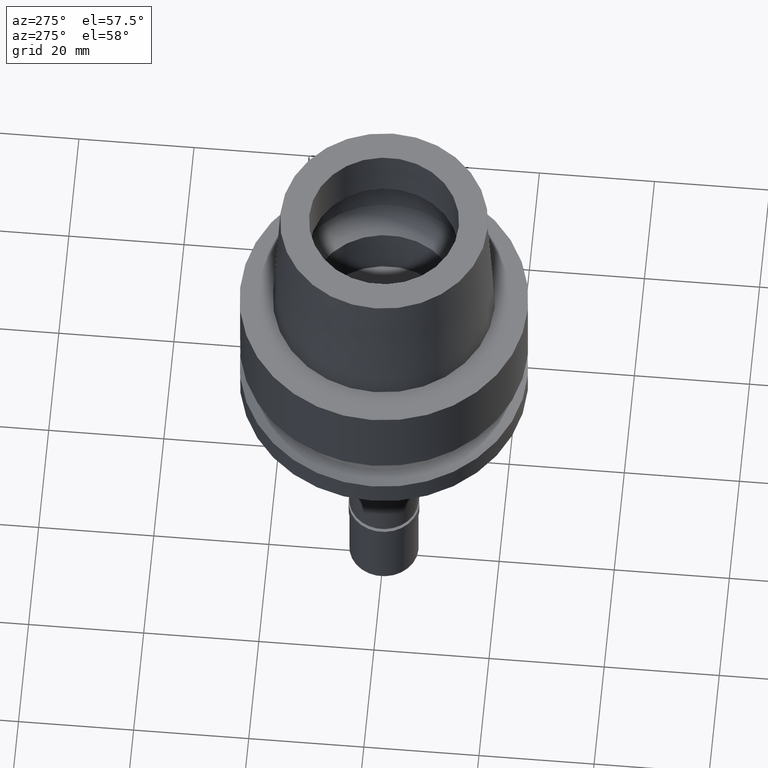
[diagram: clean part render]
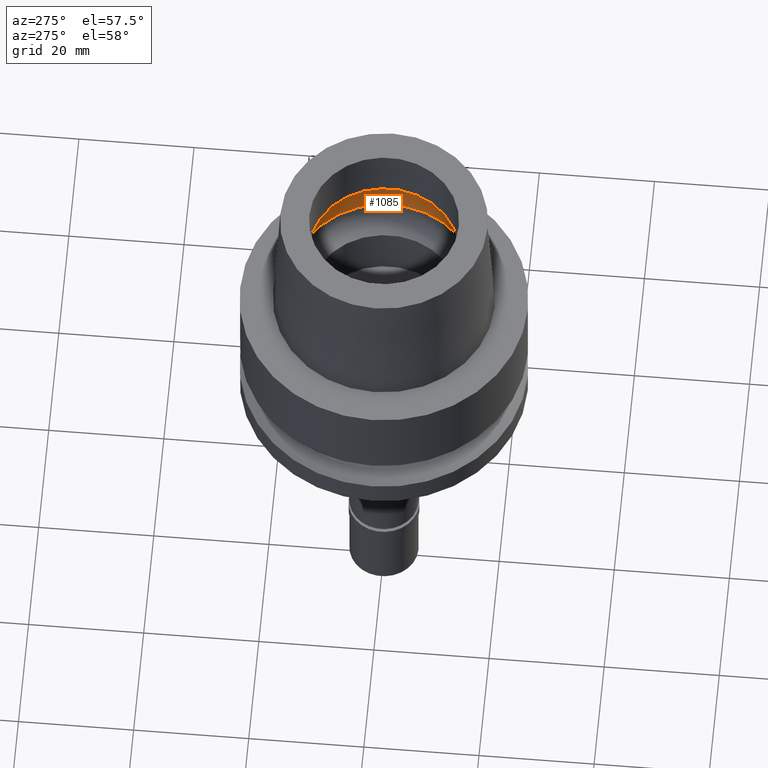
[diagram: same view with one face highlighted and labeled with its STEP entity id]
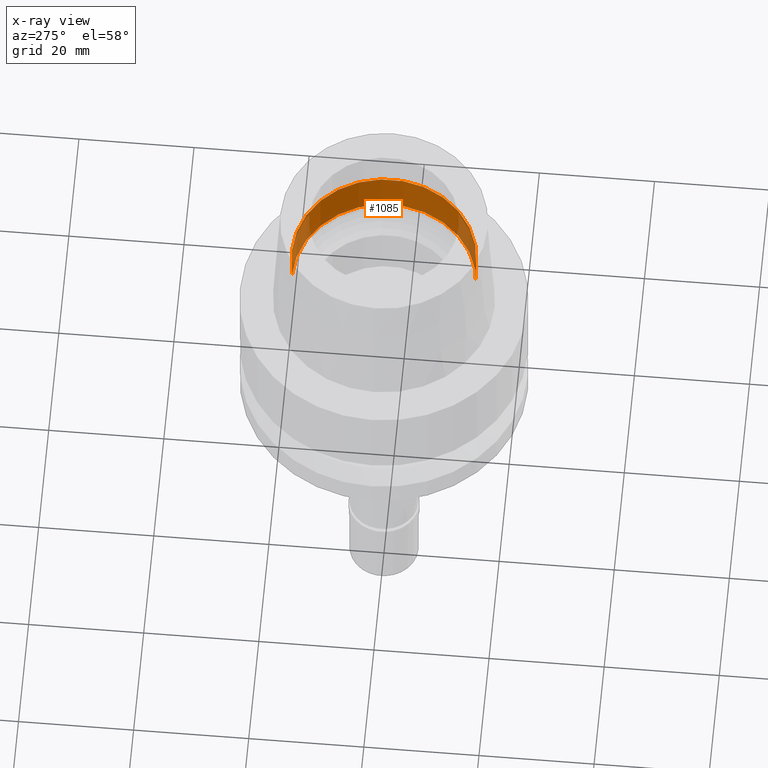
[diagram: x-ray of the same camera — body ghosted, the highlighted face saturated]
A machine part, auxiliary view. The second image highlights one B-rep face of the part: STEP entity #1085.
The next image is the same camera in x-ray: the body ghosted, the highlighted face saturated — about 17% of this face is hidden behind the body in this view.
In plain terms, the highlighted cylindrical surface (partial cylindrical patch) has radius 16 mm, axis along (0, 0, -1).
Its self-contained STEP definition (entity closure, byte-faithful):
#36 = ORIENTED_EDGE ( 'NONE', *, *, #373, .T. ) ;
#201 = VERTEX_POINT ( 'NONE', #1761 ) ;
#202 = VECTOR ( 'NONE', #1952, 1000.000000000000000 ) ;
#236 = CIRCLE ( 'NONE', #1894, 16.00000000000000000 ) ;
#272 = LINE ( 'NONE', #1963, #202 ) ;
#373 = EDGE_CURVE ( 'NONE', #1529, #201, #2586, .T. ) ;
#476 = EDGE_LOOP ( 'NONE', ( #36, #1451, #748, #1633 ) ) ;
#545 = CARTESIAN_POINT ( 'NONE',  ( 0.0000000000000000000, 0.0000000000000000000, 5.245999999999999552 ) ) ;
#640 = CARTESIAN_POINT ( 'NONE',  ( 0.0000000000000000000, 16.00000000000000000, 5.245999999999999552 ) ) ;
#651 = AXIS2_PLACEMENT_3D ( 'NONE', #693, #1825, #2035 ) ;
#675 = EDGE_CURVE ( 'NONE', #2211, #2596, #236, .T. ) ;
#693 = CARTESIAN_POINT ( 'NONE',  ( 0.0000000000000000000, 0.0000000000000000000, 30.05000000000000071 ) ) ;
#748 = ORIENTED_EDGE ( 'NONE', *, *, #675, .T. ) ;
#911 = FACE_OUTER_BOUND ( 'NONE', #476, .T. ) ;
#928 = DIRECTION ( 'NONE',  ( 0.0000000000000000000, 0.0000000000000000000, 1.000000000000000000 ) ) ;
#1043 = LINE ( 'NONE', #1245, #1465 ) ;
#1085 = ADVANCED_FACE ( 'NONE', ( #911 ), #2569, .F. ) ;
#1101 = DIRECTION ( 'NONE',  ( 0.0000000000000000000, -1.000000000000000000, 0.0000000000000000000 ) ) ;
#1245 = CARTESIAN_POINT ( 'NONE',  ( 0.0000000000000000000, -16.00000000000000000, 5.245999999999999552 ) ) ;
#1451 = ORIENTED_EDGE ( 'NONE', *, *, #2622, .T. ) ;
#1465 = VECTOR ( 'NONE', #1470, 1000.000000000000000 ) ;
#1470 = DIRECTION ( 'NONE',  ( 0.0000000000000000000, 1.200783808180999962E-13, 1.000000000000000000 ) ) ;
#1529 = VERTEX_POINT ( 'NONE', #640 ) ;
#1534 = CARTESIAN_POINT ( 'NONE',  ( 0.0000000000000000000, -16.00000000000000000, 13.26397459622000063 ) ) ;
#1618 = EDGE_CURVE ( 'NONE', #1529, #2596, #272, .T. ) ;
#1629 = DIRECTION ( 'NONE',  ( 0.0000000000000000000, 0.0000000000000000000, -1.000000000000000000 ) ) ;
#1633 = ORIENTED_EDGE ( 'NONE', *, *, #1618, .F. ) ;
#1713 = CARTESIAN_POINT ( 'NONE',  ( 0.0000000000000000000, 0.0000000000000000000, 13.26397459622000063 ) ) ;
#1761 = CARTESIAN_POINT ( 'NONE',  ( 0.0000000000000000000, -16.00000000000000000, 5.245999999999999552 ) ) ;
#1825 = DIRECTION ( 'NONE',  ( 0.0000000000000000000, 0.0000000000000000000, -1.000000000000000000 ) ) ;
#1894 = AXIS2_PLACEMENT_3D ( 'NONE', #1713, #928, #1101 ) ;
#1952 = DIRECTION ( 'NONE',  ( 0.0000000000000000000, -1.200783808180999962E-13, 1.000000000000000000 ) ) ;
#1963 = CARTESIAN_POINT ( 'NONE',  ( 0.0000000000000000000, 16.00000000000000000, 5.245999999999999552 ) ) ;
#2035 = DIRECTION ( 'NONE',  ( 0.0000000000000000000, -1.000000000000000000, 0.0000000000000000000 ) ) ;
#2211 = VERTEX_POINT ( 'NONE', #1534 ) ;
#2407 = AXIS2_PLACEMENT_3D ( 'NONE', #545, #1629, #2686 ) ;
#2484 = CARTESIAN_POINT ( 'NONE',  ( 0.0000000000000000000, 16.00000000000000000, 13.26397459622000063 ) ) ;
#2569 = CYLINDRICAL_SURFACE ( 'NONE', #651, 16.00000000000000000 ) ;
#2586 = CIRCLE ( 'NONE', #2407, 16.00000000000000000 ) ;
#2596 = VERTEX_POINT ( 'NONE', #2484 ) ;
#2622 = EDGE_CURVE ( 'NONE', #201, #2211, #1043, .T. ) ;
#2686 = DIRECTION ( 'NONE',  ( 0.0000000000000000000, 1.000000000000000000, 0.0000000000000000000 ) ) ;